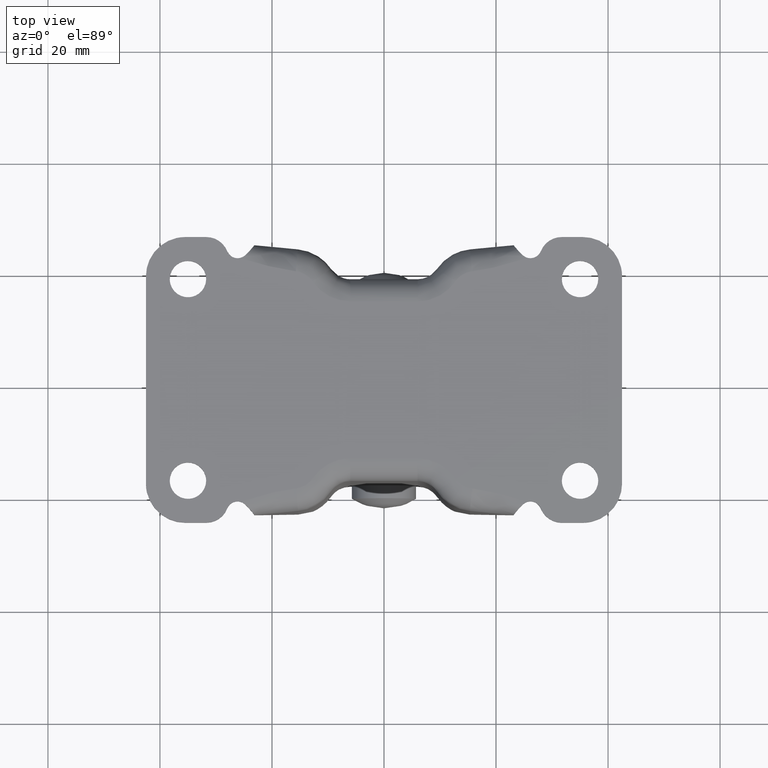
[diagram: clean part render]
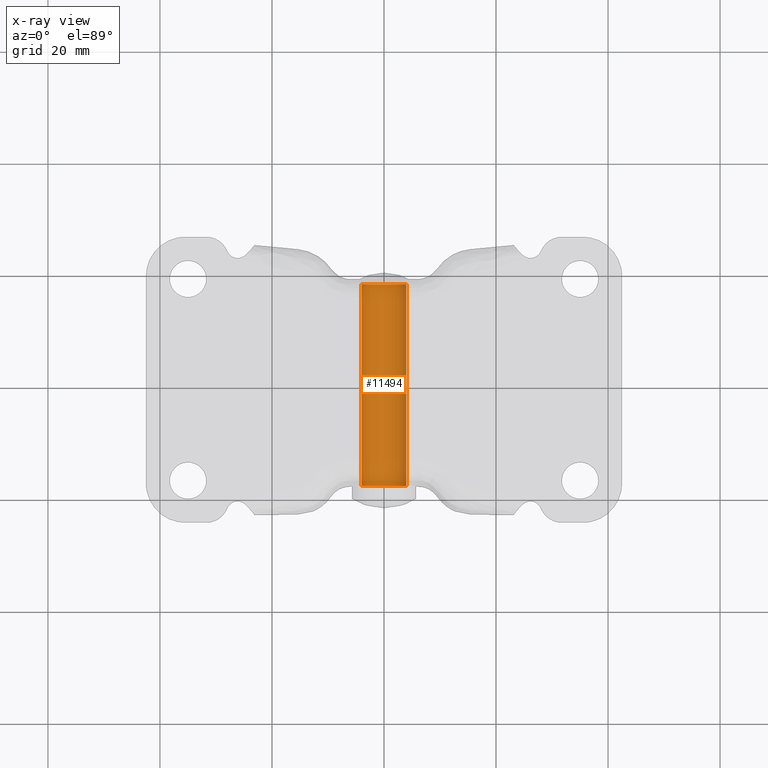
[diagram: x-ray — body ghosted, one internal face saturated and labeled with its STEP entity id]
A machine part, top view, then the same camera in x-ray: the body is ghosted and one INTERNAL B-rep face — a face not visible from any outside direction — is saturated and labeled: STEP entity #11494.
In plain terms, the highlighted face is a freeform B-spline surface patch.
Its self-contained STEP definition (entity closure, byte-faithful):
#11392=CARTESIAN_POINT('',(3.972038105454666,-18.926250020833333,-52.027863061372976));
#11393=CARTESIAN_POINT('',(3.985550461794422,-18.926250020833333,-52.141541085448083));
#11394=CARTESIAN_POINT('',(3.992539193687467,-18.926250020833340,-52.255805841860571));
#11395=CARTESIAN_POINT('',(4.236733351826894,-18.926250020833340,-56.248345035548041));
#11396=CARTESIAN_POINT('',(0.244194158139428,-18.926250020833340,-56.492539193687463));
#11397=CARTESIAN_POINT('',(-3.748345035548039,-18.926250020833340,-56.736733351826906));
#11398=CARTESIAN_POINT('',(-3.992539193687467,-18.926250020833340,-52.744194158139429));
#11399=CARTESIAN_POINT('',(3.972038105454666,18.948782104687517,-52.027863061372976));
#11400=CARTESIAN_POINT('',(3.985550461794422,18.948782104687528,-52.141541085448083));
#11401=CARTESIAN_POINT('',(3.992539193687467,18.948782104687520,-52.255805841860571));
#11402=CARTESIAN_POINT('',(4.236733351826894,18.948782104687524,-56.248345035548041));
#11403=CARTESIAN_POINT('',(0.244194158139428,18.948782104687520,-56.492539193687463));
#11404=CARTESIAN_POINT('',(-3.748345035548039,18.948782104687524,-56.736733351826906));
#11405=CARTESIAN_POINT('',(-3.992539193687467,18.948782104687520,-52.744194158139429));
#11413=(BOUNDED_SURFACE()B_SPLINE_SURFACE(2,1,((#11392,#11399),(#11393,#11400),(#11394,#11401),(#11395,#11402),(#11396,#11403),(#11397,#11404),(#11398,#11405)),.UNSPECIFIED.,.F.,.F.,.U.)B_SPLINE_SURFACE_WITH_KNOTS((3,2,2,3),(2,2),(0.0,0.265096679918781,6.892513677888305,13.519930675857831),(0.0,37.875032125520860),.UNSPECIFIED.)GEOMETRIC_REPRESENTATION_ITEM()RATIONAL_B_SPLINE_SURFACE(((0.977505800795127,0.977505800795127),(0.988284271247462,0.988284271247462),(1.0,1.0),(0.707106781186548,0.707106781186548),(1.0,1.0),(0.707106781186548,0.707106781186548),(1.0,1.0)))REPRESENTATION_ITEM('')SURFACE());
#11414=CARTESIAN_POINT('',(3.972038105430037,18.025000833333351,-52.027863061165768));
#11415=VERTEX_POINT('',#11414);
#11416=CARTESIAN_POINT('',(0.0,18.025000833333351,-56.499999999999993));
#11417=VERTEX_POINT('',#11416);
#11418=CARTESIAN_POINT('',(3.972038105430037,18.025000833333344,-52.027863061165768));
#11419=CARTESIAN_POINT('',(4.000000000000000,18.025000833333351,-52.263103521182970));
#11420=CARTESIAN_POINT('',(4.0,18.025000833333351,-52.500000000000000));
#11421=CARTESIAN_POINT('',(4.000000000000000,18.025000833333344,-56.499999999999993));
#11422=CARTESIAN_POINT('',(0.0,18.025000833333351,-56.499999999999993));
#11430=(BOUNDED_CURVE()B_SPLINE_CURVE(2,(#11418,#11419,#11420,#11421,#11422),.UNSPECIFIED.,.F.,.U.)B_SPLINE_CURVE_WITH_KNOTS((3,2,3),(0.229562473498013,0.250000000000000,0.500000000000000),.UNSPECIFIED.)CURVE()GEOMETRIC_REPRESENTATION_ITEM()RATIONAL_B_SPLINE_CURVE((0.956026754153327,0.976055948312991,1.0,0.707106781186548,1.0))REPRESENTATION_ITEM(''));
#11431=EDGE_CURVE('',#11415,#11417,#11430,.T.);
#11432=ORIENTED_EDGE('',*,*,#11431,.F.);
#11433=CARTESIAN_POINT('',(3.972038105430037,-18.024999999999999,-52.027863061165760));
#11434=VERTEX_POINT('',#11433);
#11435=CARTESIAN_POINT('',(3.972038105430037,-18.024999999999999,-52.027863061165760));
#11436=CARTESIAN_POINT('',(3.972038105430037,18.025000833333351,-52.027863061165768));
#11437=QUASI_UNIFORM_CURVE('',1,(#11435,#11436),.UNSPECIFIED.,.F.,.U.);
#11438=EDGE_CURVE('',#11434,#11415,#11437,.T.);
#11439=ORIENTED_EDGE('',*,*,#11438,.F.);
#11440=CARTESIAN_POINT('',(0.0,-18.024999999999999,-56.499999999999993));
#11441=VERTEX_POINT('',#11440);
#11442=CARTESIAN_POINT('',(3.972038105430036,-18.024999999999999,-52.027863061165768));
#11443=CARTESIAN_POINT('',(4.000000000000000,-18.024999999999999,-52.263103521182970));
#11444=CARTESIAN_POINT('',(4.0,-18.024999999999999,-52.500000000000000));
#11445=CARTESIAN_POINT('',(4.000000000000000,-18.024999999999999,-56.499999999999993));
#11446=CARTESIAN_POINT('',(0.0,-18.024999999999999,-56.499999999999993));
#11454=(BOUNDED_CURVE()B_SPLINE_CURVE(2,(#11442,#11443,#11444,#11445,#11446),.UNSPECIFIED.,.F.,.U.)B_SPLINE_CURVE_WITH_KNOTS((3,2,3),(0.229562473498012,0.250000000000000,0.500000000000000),.UNSPECIFIED.)CURVE()GEOMETRIC_REPRESENTATION_ITEM()RATIONAL_B_SPLINE_CURVE((0.956026754153327,0.976055948312990,1.0,0.707106781186548,1.0))REPRESENTATION_ITEM(''));
#11455=EDGE_CURVE('',#11434,#11441,#11454,.T.);
#11456=ORIENTED_EDGE('',*,*,#11455,.T.);
#11457=CARTESIAN_POINT('',(-3.992539193671692,-18.024999999999999,-52.744194158397363));
#11458=VERTEX_POINT('',#11457);
#11459=CARTESIAN_POINT('',(0.0,-18.024999999999999,-56.499999999999993));
#11460=CARTESIAN_POINT('',(-3.762824267135684,-18.025000000000002,-56.499999999999993));
#11461=CARTESIAN_POINT('',(-3.992539193671692,-18.024999999999999,-52.744194158397356));
#11469=(BOUNDED_CURVE()B_SPLINE_CURVE(2,(#11459,#11460,#11461),.UNSPECIFIED.,.F.,.U.)B_SPLINE_CURVE_WITH_KNOTS((3,3),(0.500000000000000,0.739332962219674),.UNSPECIFIED.)CURVE()GEOMETRIC_REPRESENTATION_ITEM()RATIONAL_B_SPLINE_CURVE((1.0,0.719603993309285,0.976072041625420))REPRESENTATION_ITEM(''));
#11470=EDGE_CURVE('',#11441,#11458,#11469,.T.);
#11471=ORIENTED_EDGE('',*,*,#11470,.T.);
#11472=CARTESIAN_POINT('',(-3.992539193671692,18.025000833333351,-52.744194158397363));
#11473=VERTEX_POINT('',#11472);
#11474=CARTESIAN_POINT('',(-3.992539193671692,-18.024999999999999,-52.744194158397363));
#11475=CARTESIAN_POINT('',(-3.992539193671692,18.025000833333351,-52.744194158397363));
#11476=QUASI_UNIFORM_CURVE('',1,(#11474,#11475),.UNSPECIFIED.,.F.,.U.);
#11477=EDGE_CURVE('',#11458,#11473,#11476,.T.);
#11478=ORIENTED_EDGE('',*,*,#11477,.T.);
#11479=CARTESIAN_POINT('',(0.0,18.025000833333351,-56.499999999999993));
#11480=CARTESIAN_POINT('',(-3.762824267135684,18.025000833333358,-56.499999999999993));
#11481=CARTESIAN_POINT('',(-3.992539193671692,18.025000833333355,-52.744194158397356));
#11489=(BOUNDED_CURVE()B_SPLINE_CURVE(2,(#11479,#11480,#11481),.UNSPECIFIED.,.F.,.U.)B_SPLINE_CURVE_WITH_KNOTS((3,3),(0.500000000000000,0.739332962219674),.UNSPECIFIED.)CURVE()GEOMETRIC_REPRESENTATION_ITEM()RATIONAL_B_SPLINE_CURVE((1.0,0.719603993309285,0.976072041625420))REPRESENTATION_ITEM(''));
#11490=EDGE_CURVE('',#11417,#11473,#11489,.T.);
#11491=ORIENTED_EDGE('',*,*,#11490,.F.);
#11492=EDGE_LOOP('',(#11432,#11439,#11456,#11471,#11478,#11491));
#11493=FACE_OUTER_BOUND('',#11492,.T.);
#11494=ADVANCED_FACE('',(#11493),#11413,.T.);